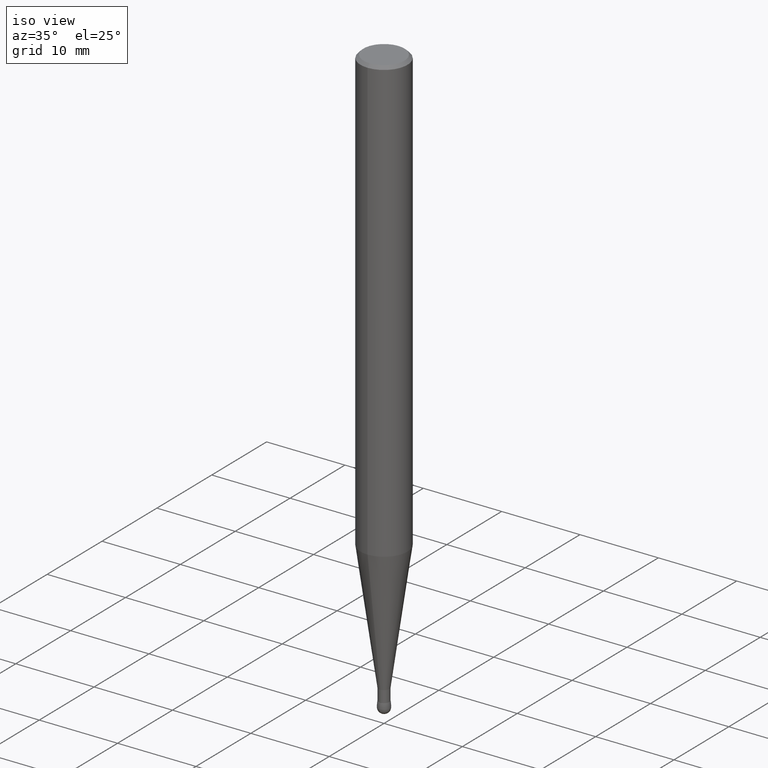
[diagram: clean part render]
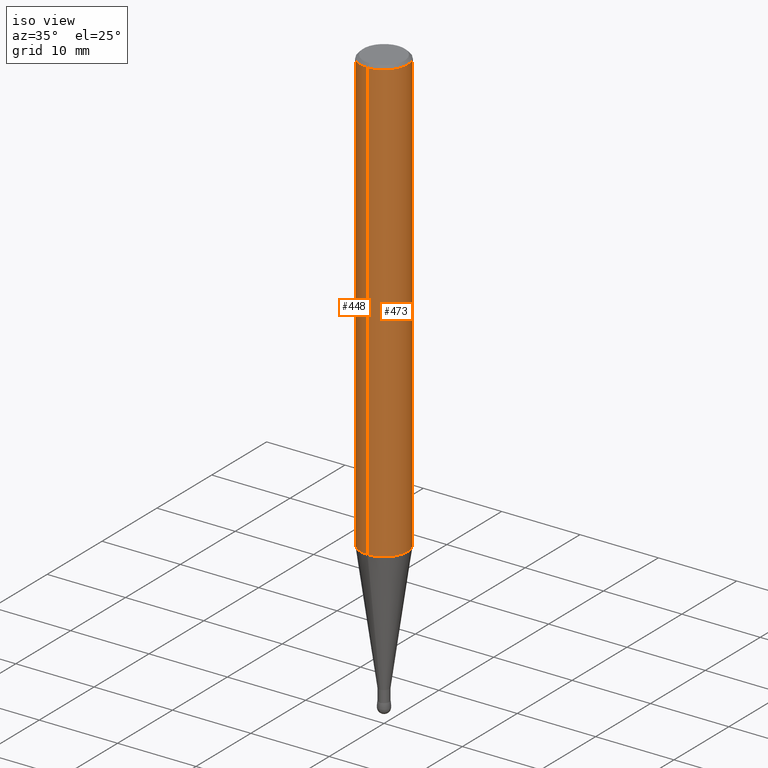
[diagram: same view with one multi-face feature highlighted, each face labeled with its STEP entity id]
A machine part, iso view. The highlighted faces form ONE feature: a constant-radius fillet chain: 2 tangent blend faces with common blend radius 2.9997 mm. The faces share edges in the B-rep.
Their STEP definitions:
[1] entity #473 (Cylinder):
#21 = VECTOR ( 'NONE', #165, 39.37007874015748143 ) ;
#29 = DIRECTION ( 'NONE',  ( 6.982962677686265922E-15, 1.000000000000000000, -3.487819265831422394E-15 ) ) ;
#49 = CARTESIAN_POINT ( 'NONE',  ( 5.440542639494698700E-29, -7.774965284413110621E-15, -2.225789818290806465 ) ) ;
#50 = EDGE_CURVE ( 'NONE', #427, #428, #204, .T. ) ;
#57 = CARTESIAN_POINT ( 'NONE',  ( -8.246878922346912674E-16, -0.1181000000000074213, -2.225789818290806021 ) ) ;
#76 = ORIENTED_EDGE ( 'NONE', *, *, #176, .T. ) ;
#86 = VECTOR ( 'NONE', #88, 39.37007874015748143 ) ;
#88 = DIRECTION ( 'NONE',  ( 2.444320031831448722E-29, -3.493126449101802848E-15, -1.000000000000000000 ) ) ;
#94 = CARTESIAN_POINT ( 'NONE',  ( 8.391509709327297689E-16, 0.1180999999999918504, -2.225789818290806910 ) ) ;
#97 = EDGE_CURVE ( 'NONE', #427, #231, #423, .T. ) ;
#104 = CARTESIAN_POINT ( 'NONE',  ( 3.666480047747100110E-31, -5.239689673652600315E-17, -0.01499999999999970281 ) ) ;
#127 = LINE ( 'NONE', #442, #86 ) ;
#140 = FACE_OUTER_BOUND ( 'NONE', #236, .T. ) ;
#142 = CARTESIAN_POINT ( 'NONE',  ( -8.102248135368149755E-16, -0.1180999999999996913, -0.01499999999999929168 ) ) ;
#156 = AXIS2_PLACEMENT_3D ( 'NONE', #485, #302, #449 ) ;
#157 = AXIS2_PLACEMENT_3D ( 'NONE', #104, #188, #29 ) ;
#165 = DIRECTION ( 'NONE',  ( 2.444320031831448722E-29, -3.493126449101802848E-15, -1.000000000000000000 ) ) ;
#176 = EDGE_CURVE ( 'NONE', #231, #493, #127, .T. ) ;
#188 = DIRECTION ( 'NONE',  ( 2.444320031831448722E-29, -3.493126449101802453E-15, -1.000000000000000000 ) ) ;
#190 = CIRCLE ( 'NONE', #392, 0.1180999999999996358 ) ;
#204 = LINE ( 'NONE', #467, #21 ) ;
#211 = DIRECTION ( 'NONE',  ( 6.982962677686265922E-15, 1.000000000000000000, -4.626330217890383536E-15 ) ) ;
#218 = CYLINDRICAL_SURFACE ( 'NONE', #156, 0.1180999999999996358 ) ;
#231 = VERTEX_POINT ( 'NONE', #142 ) ;
#236 = EDGE_LOOP ( 'NONE', ( #285, #76, #276, #422 ) ) ;
#276 = ORIENTED_EDGE ( 'NONE', *, *, #278, .F. ) ;
#278 = EDGE_CURVE ( 'NONE', #428, #493, #190, .T. ) ;
#285 = ORIENTED_EDGE ( 'NONE', *, *, #97, .T. ) ;
#302 = DIRECTION ( 'NONE',  ( 2.444320031831448722E-29, -3.493126449101802453E-15, -1.000000000000000000 ) ) ;
#392 = AXIS2_PLACEMENT_3D ( 'NONE', #49, #441, #211 ) ;
#411 = CARTESIAN_POINT ( 'NONE',  ( 8.246878922347458960E-16, 0.1180999999999995942, -0.01500000000000011567 ) ) ;
#422 = ORIENTED_EDGE ( 'NONE', *, *, #50, .F. ) ;
#423 = CIRCLE ( 'NONE', #157, 0.1180999999999996358 ) ;
#427 = VERTEX_POINT ( 'NONE', #411 ) ;
#428 = VERTEX_POINT ( 'NONE', #94 ) ;
#441 = DIRECTION ( 'NONE',  ( 2.444320031831448722E-29, -3.493126449101802453E-15, -1.000000000000000000 ) ) ;
#442 = CARTESIAN_POINT ( 'NONE',  ( -8.102248135367435835E-16, -0.1181000000000098776, -2.932999999999998941 ) ) ;
#449 = DIRECTION ( 'NONE',  ( 6.982962677686265922E-15, 1.000000000000000000, -4.626330217890383536E-15 ) ) ;
#467 = CARTESIAN_POINT ( 'NONE',  ( 8.246878922348172879E-16, 0.1180999999999893940, -2.933000000000000274 ) ) ;
#473 = ADVANCED_FACE ( 'NONE', ( #140 ), #218, .T. ) ;
#485 = CARTESIAN_POINT ( 'NONE',  ( 7.169190653361638240E-29, -1.024533987521558560E-14, -2.932999999999999385 ) ) ;
#493 = VERTEX_POINT ( 'NONE', #57 ) ;
[2] entity #448 (Cylinder):
#1 = AXIS2_PLACEMENT_3D ( 'NONE', #483, #92, #296 ) ;
#6 = EDGE_LOOP ( 'NONE', ( #391, #48, #73, #108 ) ) ;
#20 = AXIS2_PLACEMENT_3D ( 'NONE', #100, #259, #262 ) ;
#21 = VECTOR ( 'NONE', #165, 39.37007874015748143 ) ;
#48 = ORIENTED_EDGE ( 'NONE', *, *, #320, .T. ) ;
#50 = EDGE_CURVE ( 'NONE', #427, #428, #204, .T. ) ;
#57 = CARTESIAN_POINT ( 'NONE',  ( -8.246878922346912674E-16, -0.1181000000000074213, -2.225789818290806021 ) ) ;
#68 = CIRCLE ( 'NONE', #301, 0.1180999999999996358 ) ;
#73 = ORIENTED_EDGE ( 'NONE', *, *, #50, .T. ) ;
#86 = VECTOR ( 'NONE', #88, 39.37007874015748143 ) ;
#88 = DIRECTION ( 'NONE',  ( 2.444320031831448722E-29, -3.493126449101802848E-15, -1.000000000000000000 ) ) ;
#92 = DIRECTION ( 'NONE',  ( 2.444320031831448722E-29, -3.493126449101802453E-15, -1.000000000000000000 ) ) ;
#94 = CARTESIAN_POINT ( 'NONE',  ( 8.391509709327297689E-16, 0.1180999999999918504, -2.225789818290806910 ) ) ;
#100 = CARTESIAN_POINT ( 'NONE',  ( 3.666480047747100110E-31, -5.239689673652600315E-17, -0.01499999999999970281 ) ) ;
#108 = ORIENTED_EDGE ( 'NONE', *, *, #223, .F. ) ;
#127 = LINE ( 'NONE', #442, #86 ) ;
#142 = CARTESIAN_POINT ( 'NONE',  ( -8.102248135368149755E-16, -0.1180999999999996913, -0.01499999999999929168 ) ) ;
#152 = CIRCLE ( 'NONE', #20, 0.1180999999999996358 ) ;
#165 = DIRECTION ( 'NONE',  ( 2.444320031831448722E-29, -3.493126449101802848E-15, -1.000000000000000000 ) ) ;
#176 = EDGE_CURVE ( 'NONE', #231, #493, #127, .T. ) ;
#204 = LINE ( 'NONE', #467, #21 ) ;
#217 = CYLINDRICAL_SURFACE ( 'NONE', #1, 0.1180999999999996358 ) ;
#223 = EDGE_CURVE ( 'NONE', #493, #428, #68, .T. ) ;
#231 = VERTEX_POINT ( 'NONE', #142 ) ;
#259 = DIRECTION ( 'NONE',  ( 2.444320031831448722E-29, -3.493126449101802453E-15, -1.000000000000000000 ) ) ;
#262 = DIRECTION ( 'NONE',  ( 6.982962677686265922E-15, 1.000000000000000000, -3.487819265831422394E-15 ) ) ;
#295 = CARTESIAN_POINT ( 'NONE',  ( 5.440542639494698700E-29, -7.774965284413110621E-15, -2.225789818290806465 ) ) ;
#296 = DIRECTION ( 'NONE',  ( 6.982962677686265922E-15, 1.000000000000000000, -4.626330217890383536E-15 ) ) ;
#301 = AXIS2_PLACEMENT_3D ( 'NONE', #295, #401, #366 ) ;
#320 = EDGE_CURVE ( 'NONE', #231, #427, #152, .T. ) ;
#341 = FACE_OUTER_BOUND ( 'NONE', #6, .T. ) ;
#366 = DIRECTION ( 'NONE',  ( 6.982962677686265922E-15, 1.000000000000000000, -4.626330217890383536E-15 ) ) ;
#391 = ORIENTED_EDGE ( 'NONE', *, *, #176, .F. ) ;
#401 = DIRECTION ( 'NONE',  ( 2.444320031831448722E-29, -3.493126449101802453E-15, -1.000000000000000000 ) ) ;
#411 = CARTESIAN_POINT ( 'NONE',  ( 8.246878922347458960E-16, 0.1180999999999995942, -0.01500000000000011567 ) ) ;
#427 = VERTEX_POINT ( 'NONE', #411 ) ;
#428 = VERTEX_POINT ( 'NONE', #94 ) ;
#442 = CARTESIAN_POINT ( 'NONE',  ( -8.102248135367435835E-16, -0.1181000000000098776, -2.932999999999998941 ) ) ;
#448 = ADVANCED_FACE ( 'NONE', ( #341 ), #217, .T. ) ;
#467 = CARTESIAN_POINT ( 'NONE',  ( 8.246878922348172879E-16, 0.1180999999999893940, -2.933000000000000274 ) ) ;
#483 = CARTESIAN_POINT ( 'NONE',  ( 7.169190653361638240E-29, -1.024533987521558560E-14, -2.932999999999999385 ) ) ;
#493 = VERTEX_POINT ( 'NONE', #57 ) ;